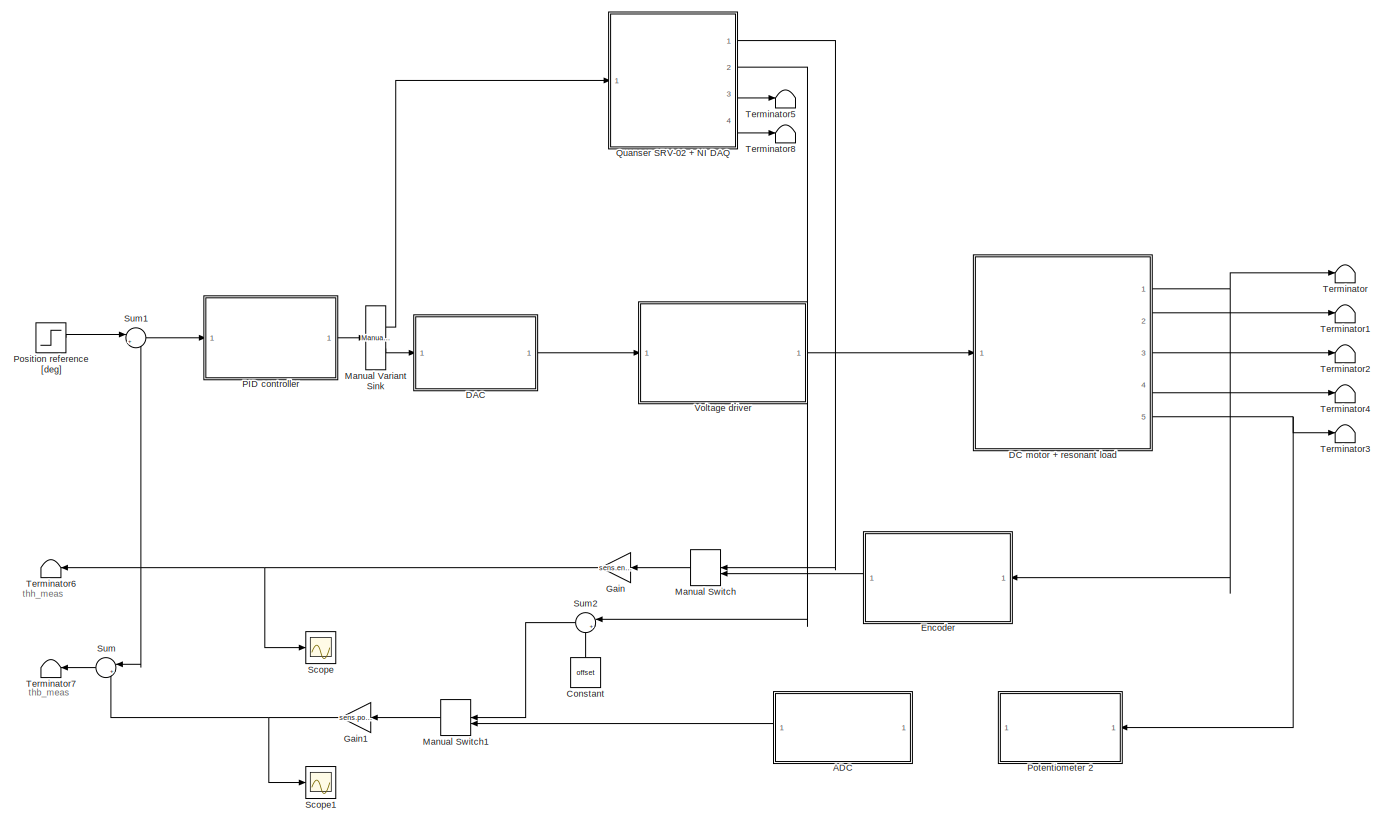
[diagram: root canvas - part 1/1, most of the canvas]
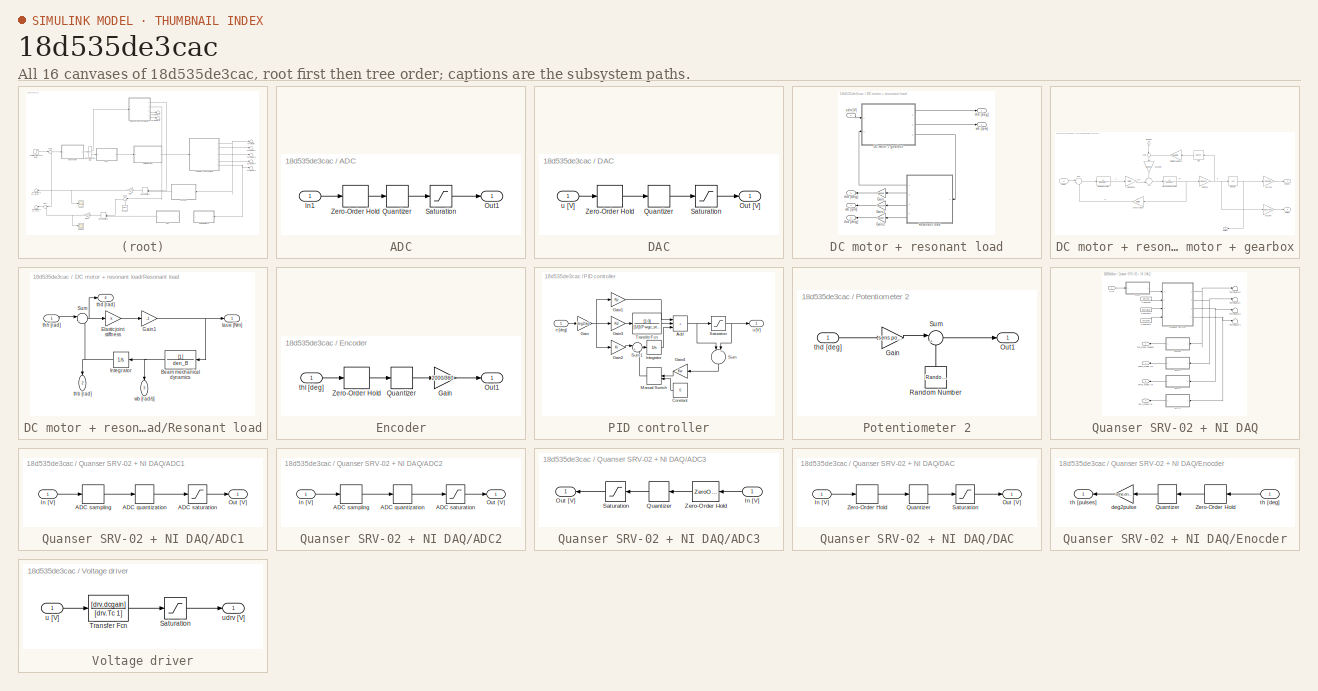
[diagram: thumbnail index - all 16 canvases of the model, root first then tree order]
MODEL slx_18d535de3cac
KIND model
CONFIG AbsTol = auto
CONFIG EnableMultiTasking = off
CONFIG FixedStep = auto
CONFIG MaxStep = auto
CONFIG MinStep = auto
CONFIG RelTol = 1e-3
CONFIG SampleTimeConstraint = Unconstrained
CONFIG SolverName = ode45
CONFIG StartTime = 0.0
CONFIG StopTime = 30.0
BLOCK [SubSystem] ADC
  Ports = [1, 1]
  RequestExecContextInheritance = off
BLOCK [Inport] ADC/In1
BLOCK [Outport] ADC/Out1
BLOCK [Quantizer] ADC/Quantizer
  QuantizationInterval = daq.adc.q
BLOCK [Saturate] ADC/Saturation
  LowerLimit = -daq.adc.fs
  UpperLimit = daq.adc.fs
BLOCK [ZeroOrderHold] ADC/Zero-Order Hold
  SampleTime = Ts
BLOCK [Constant] Constant
  NameLocation = left
  Value = offset
BLOCK [SubSystem] DAC
  Ports = [1, 1]
  RequestExecContextInheritance = off
BLOCK [Outport] DAC/Out [V]
BLOCK [Quantizer] DAC/Quantizer
  QuantizationInterval = daq.dac.q
BLOCK [Saturate] DAC/Saturation
  LowerLimit = -daq.dac.fs
  UpperLimit = daq.dac.fs
BLOCK [ZeroOrderHold] DAC/Zero-Order Hold
  SampleTime = Ts
BLOCK [Inport] DAC/u [V]
BLOCK [SubSystem] DC motor + resonant load
  Ports = [1, 5]
  RequestExecContextInheritance = off
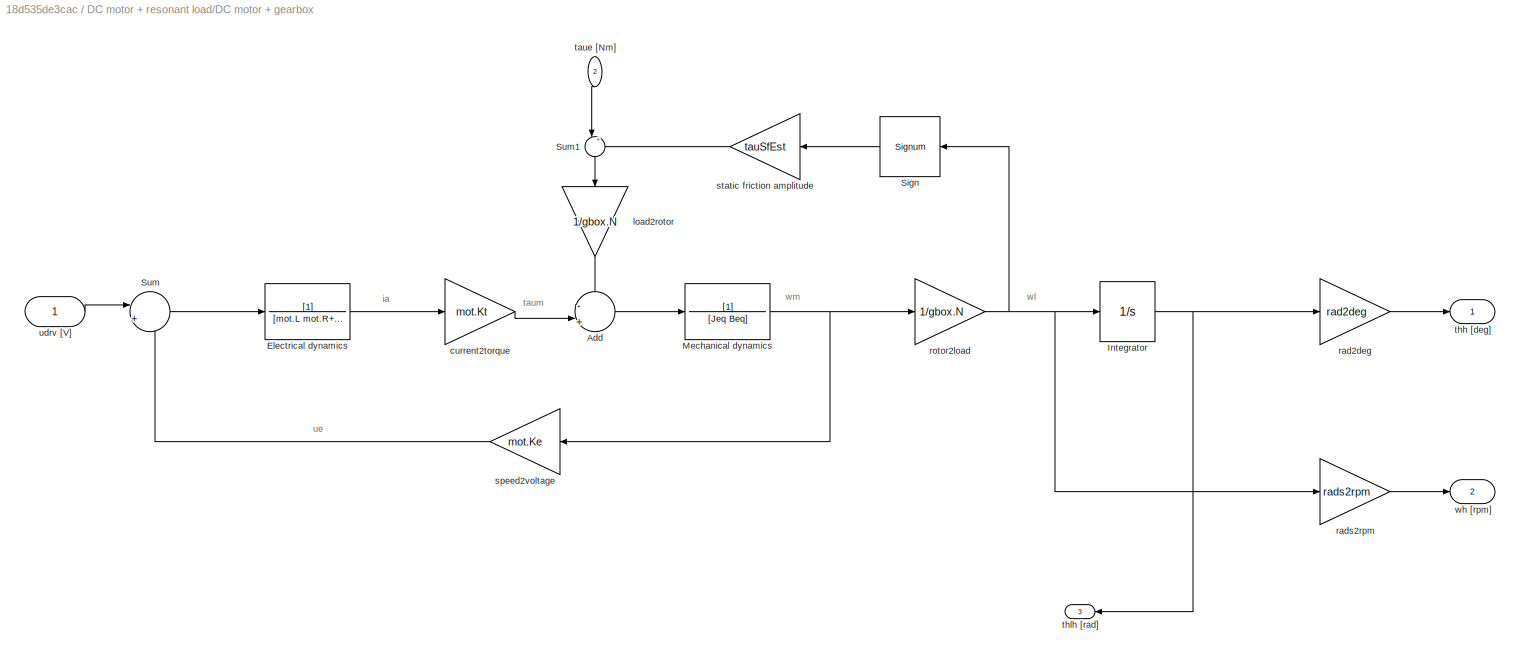
BLOCK [SubSystem] DC motor + resonant load/DC motor + gearbox
  Ports = [2, 3]
  RequestExecContextInheritance = off
BLOCK [Sum] DC motor + resonant load/DC motor + gearbox/Add
  Inputs = -|+||
  Ports = [2, 1]
BLOCK [TransferFcn] DC motor + resonant load/DC motor + gearbox/Electrical dynamics
  Denominator = [mot.L mot.R+sens.curr.Rs]
BLOCK [Integrator] DC motor + resonant load/DC motor + gearbox/Integrator
  Ports = [1, 1]
BLOCK [TransferFcn] DC motor + resonant load/DC motor + gearbox/Mechanical dynamics
  Denominator = [Jeq Beq]
BLOCK [Signum] DC motor + resonant load/DC motor + gearbox/Sign
  ZeroCross = off
BLOCK [Sum] DC motor + resonant load/DC motor + gearbox/Sum
  Inputs = |+-
  Ports = [2, 1]
BLOCK [Sum] DC motor + resonant load/DC motor + gearbox/Sum1
  Inputs = |++
  NameLocation = left
  Ports = [2, 1]
BLOCK [Gain] DC motor + resonant load/DC motor + gearbox/current2torque
  Gain = mot.Kt
BLOCK [Gain] DC motor + resonant load/DC motor + gearbox/load2rotor
  Gain = 1/gbox.N
  NameLocation = left
BLOCK [Gain] DC motor + resonant load/DC motor + gearbox/rad2deg
  Gain = rad2deg
BLOCK [Gain] DC motor + resonant load/DC motor + gearbox/rads2rpm
  Gain = rads2rpm
BLOCK [Gain] DC motor + resonant load/DC motor + gearbox/rotor2load
  Gain = 1/gbox.N
BLOCK [Gain] DC motor + resonant load/DC motor + gearbox/speed2voltage
  Gain = mot.Ke
BLOCK [Gain] DC motor + resonant load/DC motor + gearbox/static friction amplitude
  Gain = tauSfEst
  NameLocation = top
BLOCK [Inport] DC motor + resonant load/DC motor + gearbox/taue [Nm]
  NameLocation = left
  Port = 2
BLOCK [Outport] DC motor + resonant load/DC motor + gearbox/thh [deg] 
BLOCK [Outport] DC motor + resonant load/DC motor + gearbox/thlh [rad]
  NameLocation = top
  Port = 3
BLOCK [Inport] DC motor + resonant load/DC motor + gearbox/udrv [V]
BLOCK [Outport] DC motor + resonant load/DC motor + gearbox/wh [rpm]
  Port = 2
BLOCK [Gain] DC motor + resonant load/Gain
  Gain = rad2deg
BLOCK [Gain] DC motor + resonant load/Gain1
  Gain = rads2rpm
BLOCK [Gain] DC motor + resonant load/Gain2
  Gain = rad2deg
BLOCK [SubSystem] DC motor + resonant load/Resonant load
  Ports = [1, 4]
  RequestExecContextInheritance = off
BLOCK [TransferFcn] DC motor + resonant load/Resonant load/Beam mechanical dynamics
  Denominator = den_B
BLOCK [Gain] DC motor + resonant load/Resonant load/Elastic joint stiffness
  Gain = k
BLOCK [Gain] DC motor + resonant load/Resonant load/Gain1
  Gain = -1
BLOCK [Integrator] DC motor + resonant load/Resonant load/Integrator
  Ports = [1, 1]
BLOCK [Sum] DC motor + resonant load/Resonant load/Sum
  Inputs = |-+
  Ports = [2, 1]
BLOCK [Outport] DC motor + resonant load/Resonant load/taue [Nm]
BLOCK [Outport] DC motor + resonant load/Resonant load/thb [rad]
  NameLocation = left
  Port = 2
BLOCK [Outport] DC motor + resonant load/Resonant load/thd [rad]
  Port = 4
BLOCK [Inport] DC motor + resonant load/Resonant load/thh [rad]
BLOCK [Outport] DC motor + resonant load/Resonant load/wb [rad//s]
  NameLocation = left
  Port = 3
BLOCK [Outport] DC motor + resonant load/thb [deg]
  Port = 3
BLOCK [Outport] DC motor + resonant load/thd [deg]
  Port = 5
BLOCK [Outport] DC motor + resonant load/thh [deg] 
BLOCK [Inport] DC motor + resonant load/udrv [V]
BLOCK [Outport] DC motor + resonant load/wb [rpm]
  Port = 4
BLOCK [Outport] DC motor + resonant load/wh [rpm]
  Port = 2
BLOCK [SubSystem] Encoder
  Ports = [1, 1]
  RequestExecContextInheritance = off
BLOCK [Gain] Encoder/Gain
  Gain = 2000/360
BLOCK [Outport] Encoder/Out1
BLOCK [Quantizer] Encoder/Quantizer
  QuantizationInterval = 360/(500*4)
BLOCK [ZeroOrderHold] Encoder/Zero-Order Hold
  SampleTime = Ts
BLOCK [Inport] Encoder/thl [deg] 
BLOCK [Gain] Gain
  Gain = sens.enc.pulse2deg
BLOCK [Gain] Gain1
  Gain = sens.pot2.V2deg
BLOCK [ManualSwitch] Manual Switch
BLOCK [ManualSwitch] Manual Switch1
BLOCK [Reference] Manual Variant Sink  REF=simulink/Signal
Routing/Manual
Variant Sink
  Ports = [1, 2]
  SourceBlock = simulink/Signal\nRouting/Manual\nVariant Sink
  SourceProductBaseCode = SL
  SourceType = ManualVariantSink
BLOCK [SubSystem] PID controller
  Ports = [1, 1]
  RequestExecContextInheritance = off
BLOCK [Sum] PID controller/Add
  IconShape = rectangular
  Inputs = +++
  Ports = [3, 1]
BLOCK [Constant] PID controller/Constant
  Value = 0
BLOCK [Gain] PID controller/Gain
  Gain = deg2rad
BLOCK [Gain] PID controller/Gain1
  Gain = Kp
BLOCK [Gain] PID controller/Gain2
  Gain = Ki
BLOCK [Gain] PID controller/Gain3
  Gain = Kd
BLOCK [Gain] PID controller/Gain4
  Gain = Kw
BLOCK [Integrator] PID controller/Integrator
  Ports = [1, 1]
BLOCK [ManualSwitch] PID controller/Manual Switch
  NameLocation = top
BLOCK [Saturate] PID controller/Saturation
  LowerLimit = -12
  UpperLimit = 12
BLOCK [Sum] PID controller/Sum
  Inputs = ||+-||
  NameLocation = left
  Ports = [2, 1]
BLOCK [Sum] PID controller/Sum1
  Inputs = |+-
  Ports = [2, 1]
BLOCK [TransferFcn] PID controller/Transfer Fcn
  Denominator = [1/(10*wgc_star) 1]
  Numerator = [1 0]
BLOCK [Inport] PID controller/e [deg]
BLOCK [Outport] PID controller/u [V]
BLOCK [Step] Position reference [deg]
  After = 50
  SampleTime = 0
  Time = 0
BLOCK [SubSystem] Potentiometer 2
  Ports = [1, 1]
  RequestExecContextInheritance = off
BLOCK [Gain] Potentiometer 2/Gain
  Gain = sens.pot2.deg2V
BLOCK [Outport] Potentiometer 2/Out1
BLOCK [RandomNumber] Potentiometer 2/Random Number
  NameLocation = right
  SampleTime = Ts
  Variance = 3.5e-7
BLOCK [Sum] Potentiometer 2/Sum
  Inputs = |++
  Ports = [2, 1]
BLOCK [Inport] Potentiometer 2/thd [deg]
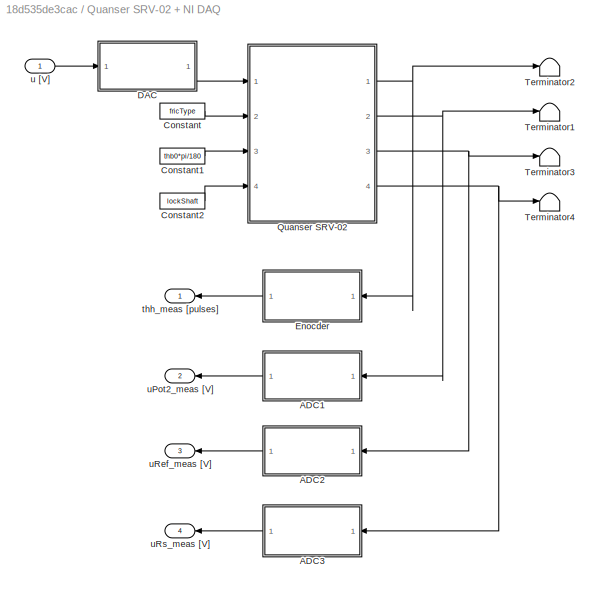
BLOCK [SubSystem] Quanser SRV-02 + NI DAQ
  Ports = [1, 4]
  RequestExecContextInheritance = off
BLOCK [SubSystem] Quanser SRV-02 + NI DAQ/ADC1
  Ports = [1, 1]
  RequestExecContextInheritance = off
BLOCK [Quantizer] Quanser SRV-02 + NI DAQ/ADC1/ADC quantization
  QuantizationInterval = daq.adc.q
BLOCK [ZeroOrderHold] Quanser SRV-02 + NI DAQ/ADC1/ADC sampling
  SampleTime = Ts
BLOCK [Saturate] Quanser SRV-02 + NI DAQ/ADC1/ADC saturation
  LowerLimit = -daq.adc.fs
  UpperLimit = daq.adc.fs
BLOCK [Inport] Quanser SRV-02 + NI DAQ/ADC1/In [V]
BLOCK [Outport] Quanser SRV-02 + NI DAQ/ADC1/Out [V]
BLOCK [SubSystem] Quanser SRV-02 + NI DAQ/ADC2
  Ports = [1, 1]
  RequestExecContextInheritance = off
BLOCK [Quantizer] Quanser SRV-02 + NI DAQ/ADC2/ADC quantization
  QuantizationInterval = daq.adc.q
BLOCK [ZeroOrderHold] Quanser SRV-02 + NI DAQ/ADC2/ADC sampling
  SampleTime = Ts
BLOCK [Saturate] Quanser SRV-02 + NI DAQ/ADC2/ADC saturation
  LowerLimit = -daq.adc.fs
  UpperLimit = daq.adc.fs
BLOCK [Inport] Quanser SRV-02 + NI DAQ/ADC2/In [V]
BLOCK [Outport] Quanser SRV-02 + NI DAQ/ADC2/Out [V]
BLOCK [SubSystem] Quanser SRV-02 + NI DAQ/ADC3
  Ports = [1, 1]
  RequestExecContextInheritance = off
BLOCK [Inport] Quanser SRV-02 + NI DAQ/ADC3/In [V]
BLOCK [Outport] Quanser SRV-02 + NI DAQ/ADC3/Out [V]
BLOCK [Quantizer] Quanser SRV-02 + NI DAQ/ADC3/Quantizer
  QuantizationInterval = daq.adc.q
BLOCK [Saturate] Quanser SRV-02 + NI DAQ/ADC3/Saturation
  LowerLimit = -daq.adc.fs
  UpperLimit = daq.adc.fs
BLOCK [ZeroOrderHold] Quanser SRV-02 + NI DAQ/ADC3/Zero-Order Hold
  SampleTime = Ts
BLOCK [Constant] Quanser SRV-02 + NI DAQ/Constant
  Value = fricType
BLOCK [Constant] Quanser SRV-02 + NI DAQ/Constant1
  SampleTime = Inf
  Value = thb0*pi/180
BLOCK [Constant] Quanser SRV-02 + NI DAQ/Constant2
  SampleTime = Inf
  Value = lockShaft
BLOCK [SubSystem] Quanser SRV-02 + NI DAQ/DAC
  Ports = [1, 1]
  RequestExecContextInheritance = off
BLOCK [Inport] Quanser SRV-02 + NI DAQ/DAC/In [V]
BLOCK [Outport] Quanser SRV-02 + NI DAQ/DAC/Out [V]
BLOCK [Quantizer] Quanser SRV-02 + NI DAQ/DAC/Quantizer
  QuantizationInterval = daq.dac.q
BLOCK [Saturate] Quanser SRV-02 + NI DAQ/DAC/Saturation
  LowerLimit = -daq.dac.fs
  UpperLimit = daq.dac.fs
BLOCK [ZeroOrderHold] Quanser SRV-02 + NI DAQ/DAC/Zero-Order Hold
  SampleTime = Ts
BLOCK [SubSystem] Quanser SRV-02 + NI DAQ/Enocder
  Ports = [1, 1]
  RequestExecContextInheritance = off
BLOCK [Quantizer] Quanser SRV-02 + NI DAQ/Enocder/Quantizer
  QuantizationInterval = sens.enc.pulse2deg
BLOCK [ZeroOrderHold] Quanser SRV-02 + NI DAQ/Enocder/Zero-Order Hold
  SampleTime = Ts
BLOCK [Gain] Quanser SRV-02 + NI DAQ/Enocder/deg2pulse
  Gain = sens.enc.deg2pulse
BLOCK [Inport] Quanser SRV-02 + NI DAQ/Enocder/th [deg]
BLOCK [Outport] Quanser SRV-02 + NI DAQ/Enocder/th [pulses]
BLOCK [ModelReference] Quanser SRV-02 + NI DAQ/Quanser SRV-02
  CopyOfModelProtected = on
  ModelNameDialog = SRV02RL_maci64.slxp
  ModelReferenceVersion = 1.76
  Ports = [4, 4]
BLOCK [Terminator] Quanser SRV-02 + NI DAQ/Terminator1
BLOCK [Terminator] Quanser SRV-02 + NI DAQ/Terminator2
BLOCK [Terminator] Quanser SRV-02 + NI DAQ/Terminator3
BLOCK [Terminator] Quanser SRV-02 + NI DAQ/Terminator4
BLOCK [Outport] Quanser SRV-02 + NI DAQ/thh_meas [pulses]
BLOCK [Inport] Quanser SRV-02 + NI DAQ/u [V]
BLOCK [Outport] Quanser SRV-02 + NI DAQ/uPot2_meas [V]
  Port = 2
BLOCK [Outport] Quanser SRV-02 + NI DAQ/uRef_meas [V]
  Port = 3
BLOCK [Outport] Quanser SRV-02 + NI DAQ/uRs_meas [V]
  Port = 4
BLOCK [Scope] Scope
  Floating = off
  NumInputPorts = 1
  Ports = [1]
  ScopeSpecificationString = Simulink.scopes.TimeScopeBlockCfg('CurrentConfiguration', extmgr.ConfigurationSet(extmgr.Configuration('Core','General UI',true),extmgr.Configuration('Core','Source UI',true),extmgr.Configuration('Sources','WiredSimulink',true),extmgr.Configuration('Visuals','Time Domain',true,'SerializedDisplays',{struct('MinYLimReal','-7.785','MaxYLimReal','70.065','YLabelReal','','MinYLimMag','0.00000','MaxYLim...<+1388ch>
BLOCK [Scope] Scope1
  Floating = off
  NumInputPorts = 1
  Ports = [1]
  ScopeSpecificationString = Simulink.scopes.TimeScopeBlockCfg('CurrentConfiguration', extmgr.ConfigurationSet(extmgr.Configuration('Core','General UI',true),extmgr.Configuration('Core','Source UI',true),extmgr.Configuration('Sources','WiredSimulink',true,'DataLoggingVariableName','ScopeData1'),extmgr.Configuration('Visuals','Time Domain',true,'SerializedDisplays',{struct('MinYLimReal','-11.47604','MaxYLimReal','5.02202','YLa...<+1440ch>
BLOCK [Sum] Sum
  Inputs = |++
  Ports = [2, 1]
BLOCK [Sum] Sum1
  Inputs = |+-
  Ports = [2, 1]
BLOCK [Sum] Sum2
  Inputs = |+-
  Ports = [2, 1]
BLOCK [Terminator] Terminator
BLOCK [Terminator] Terminator1
BLOCK [Terminator] Terminator2
BLOCK [Terminator] Terminator3
BLOCK [Terminator] Terminator4
BLOCK [Terminator] Terminator5
BLOCK [Terminator] Terminator6
BLOCK [Terminator] Terminator7
BLOCK [Terminator] Terminator8
BLOCK [SubSystem] Voltage driver
  Ports = [1, 1]
  RequestExecContextInheritance = off
BLOCK [Saturate] Voltage driver/Saturation
  LowerLimit = -12
  UpperLimit = 12
BLOCK [TransferFcn] Voltage driver/Transfer Fcn
  Denominator = [drv.Tc 1]
  Numerator = [drv.dcgain]
BLOCK [Inport] Voltage driver/u [V]
BLOCK [Outport] Voltage driver/udrv [V]
ANNOTATION (root): thb_meas
ANNOTATION (root): thh_meas
ANNOTATION DC motor + resonant load/DC motor + gearbox: ia
ANNOTATION DC motor + resonant load/DC motor + gearbox: taum
ANNOTATION DC motor + resonant load/DC motor + gearbox: ue
ANNOTATION DC motor + resonant load/DC motor + gearbox: wl
ANNOTATION DC motor + resonant load/DC motor + gearbox: wm
LINE ADC/In1:1 -> ADC/Zero-Order Hold:1
LINE ADC/Quantizer:1 -> ADC/Saturation:1
LINE ADC/Saturation:1 -> ADC/Out1:1
LINE ADC/Zero-Order Hold:1 -> ADC/Quantizer:1
LINE ADC:1 -> Manual Switch1:2
LINE Constant:1 -> Sum2:2
LINE DAC/Quantizer:1 -> DAC/Saturation:1
LINE DAC/Saturation:1 -> DAC/Out [V]:1
LINE DAC/Zero-Order Hold:1 -> DAC/Quantizer:1
LINE DAC/u [V]:1 -> DAC/Zero-Order Hold:1
LINE DAC:1 -> Voltage driver:1
LINE DC motor + resonant load/DC motor + gearbox/Add:1 -> DC motor + resonant load/DC motor + gearbox/Mechanical dynamics:1
LINE DC motor + resonant load/DC motor + gearbox/Electrical dynamics:1 -> DC motor + resonant load/DC motor + gearbox/current2torque:1
NET DC motor + resonant load/DC motor + gearbox/Integrator:1 -> DC motor + resonant load/DC motor + gearbox/rad2deg:1, DC motor + resonant load/DC motor + gearbox/thlh [rad]:1
NET DC motor + resonant load/DC motor + gearbox/Mechanical dynamics:1 -> DC motor + resonant load/DC motor + gearbox/rotor2load:1, DC motor + resonant load/DC motor + gearbox/speed2voltage:1
LINE DC motor + resonant load/DC motor + gearbox/Sign:1 -> DC motor + resonant load/DC motor + gearbox/static friction amplitude:1
LINE DC motor + resonant load/DC motor + gearbox/Sum1:1 -> DC motor + resonant load/DC motor + gearbox/load2rotor:1
LINE DC motor + resonant load/DC motor + gearbox/Sum:1 -> DC motor + resonant load/DC motor + gearbox/Electrical dynamics:1
LINE DC motor + resonant load/DC motor + gearbox/current2torque:1 -> DC motor + resonant load/DC motor + gearbox/Add:2
LINE DC motor + resonant load/DC motor + gearbox/load2rotor:1 -> DC motor + resonant load/DC motor + gearbox/Add:1
LINE DC motor + resonant load/DC motor + gearbox/rad2deg:1 -> DC motor + resonant load/DC motor + gearbox/thh [deg] :1
LINE DC motor + resonant load/DC motor + gearbox/rads2rpm:1 -> DC motor + resonant load/DC motor + gearbox/wh [rpm]:1
NET DC motor + resonant load/DC motor + gearbox/rotor2load:1 -> DC motor + resonant load/DC motor + gearbox/Integrator:1, DC motor + resonant load/DC motor + gearbox/Sign:1, DC motor + resonant load/DC motor + gearbox/rads2rpm:1
LINE DC motor + resonant load/DC motor + gearbox/speed2voltage:1 -> DC motor + resonant load/DC motor + gearbox/Sum:2
LINE DC motor + resonant load/DC motor + gearbox/static friction amplitude:1 -> DC motor + resonant load/DC motor + gearbox/Sum1:2
LINE DC motor + resonant load/DC motor + gearbox/taue [Nm]:1 -> DC motor + resonant load/DC motor + gearbox/Sum1:1
LINE DC motor + resonant load/DC motor + gearbox/udrv [V]:1 -> DC motor + resonant load/DC motor + gearbox/Sum:1
LINE DC motor + resonant load/DC motor + gearbox:1 -> DC motor + resonant load/thh [deg] :1
LINE DC motor + resonant load/DC motor + gearbox:2 -> DC motor + resonant load/wh [rpm]:1
LINE DC motor + resonant load/DC motor + gearbox:3 -> DC motor + resonant load/Resonant load:1
LINE DC motor + resonant load/Gain1:1 -> DC motor + resonant load/wb [rpm]:1
LINE DC motor + resonant load/Gain2:1 -> DC motor + resonant load/thd [deg]:1
LINE DC motor + resonant load/Gain:1 -> DC motor + resonant load/thb [deg]:1
NET DC motor + resonant load/Resonant load/Beam mechanical dynamics:1 -> DC motor + resonant load/Resonant load/Integrator:1, DC motor + resonant load/Resonant load/wb [rad//s]:1
LINE DC motor + resonant load/Resonant load/Elastic joint stiffness:1 -> DC motor + resonant load/Resonant load/Gain1:1
NET DC motor + resonant load/Resonant load/Gain1:1 -> DC motor + resonant load/Resonant load/Beam mechanical dynamics:1, DC motor + resonant load/Resonant load/taue [Nm]:1
NET DC motor + resonant load/Resonant load/Integrator:1 -> DC motor + resonant load/Resonant load/Sum:2, DC motor + resonant load/Resonant load/thb [rad]:1
NET DC motor + resonant load/Resonant load/Sum:1 -> DC motor + resonant load/Resonant load/Elastic joint stiffness:1, DC motor + resonant load/Resonant load/thd [rad]:1
LINE DC motor + resonant load/Resonant load/thh [rad]:1 -> DC motor + resonant load/Resonant load/Sum:1
LINE DC motor + resonant load/Resonant load:1 -> DC motor + resonant load/DC motor + gearbox:2
LINE DC motor + resonant load/Resonant load:2 -> DC motor + resonant load/Gain:1
LINE DC motor + resonant load/Resonant load:3 -> DC motor + resonant load/Gain1:1
LINE DC motor + resonant load/Resonant load:4 -> DC motor + resonant load/Gain2:1
LINE DC motor + resonant load/udrv [V]:1 -> DC motor + resonant load/DC motor + gearbox:1
NET DC motor + resonant load:1 -> Encoder:1, Terminator:1
LINE DC motor + resonant load:2 -> Terminator1:1
LINE DC motor + resonant load:3 -> Terminator2:1
LINE DC motor + resonant load:4 -> Terminator4:1
NET DC motor + resonant load:5 -> Potentiometer 2:1, Terminator3:1
LINE Encoder/Gain:1 -> Encoder/Out1:1
LINE Encoder/Quantizer:1 -> Encoder/Gain:1
LINE Encoder/Zero-Order Hold:1 -> Encoder/Quantizer:1
LINE Encoder/thl [deg] :1 -> Encoder/Zero-Order Hold:1
LINE Encoder:1 -> Manual Switch:2
NET Gain1:1 -> Scope1:1, Sum:2
NET Gain:1 -> Scope:1, Sum1:2, Sum:1, Terminator6:1
LINE Manual Switch1:1 -> Gain1:1
LINE Manual Switch:1 -> Gain:1
LINE Manual Variant Sink:1 -> Quanser SRV-02 + NI DAQ:1
LINE Manual Variant Sink:2 -> DAC:1
NET PID controller/Add:1 -> PID controller/Saturation:1, PID controller/Sum:1
LINE PID controller/Constant:1 -> PID controller/Manual Switch:2
LINE PID controller/Gain1:1 -> PID controller/Add:1
LINE PID controller/Gain2:1 -> PID controller/Sum1:1
LINE PID controller/Gain3:1 -> PID controller/Transfer Fcn:1
LINE PID controller/Gain4:1 -> PID controller/Manual Switch:1
NET PID controller/Gain:1 -> PID controller/Gain1:1, PID controller/Gain2:1, PID controller/Gain3:1
LINE PID controller/Integrator:1 -> PID controller/Add:3
LINE PID controller/Manual Switch:1 -> PID controller/Sum1:2
NET PID controller/Saturation:1 -> PID controller/Sum:2, PID controller/u [V]:1
LINE PID controller/Sum1:1 -> PID controller/Integrator:1
LINE PID controller/Sum:1 -> PID controller/Gain4:1
LINE PID controller/Transfer Fcn:1 -> PID controller/Add:2
LINE PID controller/e [deg]:1 -> PID controller/Gain:1
LINE PID controller:1 -> Manual Variant Sink:1
LINE Position reference [deg]:1 -> Sum1:1
LINE Potentiometer 2/Gain:1 -> Potentiometer 2/Sum:1
LINE Potentiometer 2/Random Number:1 -> Potentiometer 2/Sum:2
LINE Potentiometer 2/Sum:1 -> Potentiometer 2/Out1:1
LINE Potentiometer 2/thd [deg]:1 -> Potentiometer 2/Gain:1
LINE Quanser SRV-02 + NI DAQ/ADC1/ADC quantization:1 -> Quanser SRV-02 + NI DAQ/ADC1/ADC saturation:1
LINE Quanser SRV-02 + NI DAQ/ADC1/ADC sampling:1 -> Quanser SRV-02 + NI DAQ/ADC1/ADC quantization:1
LINE Quanser SRV-02 + NI DAQ/ADC1/ADC saturation:1 -> Quanser SRV-02 + NI DAQ/ADC1/Out [V]:1
LINE Quanser SRV-02 + NI DAQ/ADC1/In [V]:1 -> Quanser SRV-02 + NI DAQ/ADC1/ADC sampling:1
LINE Quanser SRV-02 + NI DAQ/ADC1:1 -> Quanser SRV-02 + NI DAQ/uPot2_meas [V]:1
LINE Quanser SRV-02 + NI DAQ/ADC2/ADC quantization:1 -> Quanser SRV-02 + NI DAQ/ADC2/ADC saturation:1
LINE Quanser SRV-02 + NI DAQ/ADC2/ADC sampling:1 -> Quanser SRV-02 + NI DAQ/ADC2/ADC quantization:1
LINE Quanser SRV-02 + NI DAQ/ADC2/ADC saturation:1 -> Quanser SRV-02 + NI DAQ/ADC2/Out [V]:1
LINE Quanser SRV-02 + NI DAQ/ADC2/In [V]:1 -> Quanser SRV-02 + NI DAQ/ADC2/ADC sampling:1
LINE Quanser SRV-02 + NI DAQ/ADC2:1 -> Quanser SRV-02 + NI DAQ/uRef_meas [V]:1
LINE Quanser SRV-02 + NI DAQ/ADC3/In [V]:1 -> Quanser SRV-02 + NI DAQ/ADC3/Zero-Order Hold:1
LINE Quanser SRV-02 + NI DAQ/ADC3/Quantizer:1 -> Quanser SRV-02 + NI DAQ/ADC3/Saturation:1
LINE Quanser SRV-02 + NI DAQ/ADC3/Saturation:1 -> Quanser SRV-02 + NI DAQ/ADC3/Out [V]:1
LINE Quanser SRV-02 + NI DAQ/ADC3/Zero-Order Hold:1 -> Quanser SRV-02 + NI DAQ/ADC3/Quantizer:1
LINE Quanser SRV-02 + NI DAQ/ADC3:1 -> Quanser SRV-02 + NI DAQ/uRs_meas [V]:1
LINE Quanser SRV-02 + NI DAQ/Constant1:1 -> Quanser SRV-02 + NI DAQ/Quanser SRV-02:3
LINE Quanser SRV-02 + NI DAQ/Constant2:1 -> Quanser SRV-02 + NI DAQ/Quanser SRV-02:4
LINE Quanser SRV-02 + NI DAQ/Constant:1 -> Quanser SRV-02 + NI DAQ/Quanser SRV-02:2
LINE Quanser SRV-02 + NI DAQ/DAC/In [V]:1 -> Quanser SRV-02 + NI DAQ/DAC/Zero-Order Hold:1
LINE Quanser SRV-02 + NI DAQ/DAC/Quantizer:1 -> Quanser SRV-02 + NI DAQ/DAC/Saturation:1
LINE Quanser SRV-02 + NI DAQ/DAC/Saturation:1 -> Quanser SRV-02 + NI DAQ/DAC/Out [V]:1
LINE Quanser SRV-02 + NI DAQ/DAC/Zero-Order Hold:1 -> Quanser SRV-02 + NI DAQ/DAC/Quantizer:1
LINE Quanser SRV-02 + NI DAQ/DAC:1 -> Quanser SRV-02 + NI DAQ/Quanser SRV-02:1
LINE Quanser SRV-02 + NI DAQ/Enocder/Quantizer:1 -> Quanser SRV-02 + NI DAQ/Enocder/deg2pulse:1
LINE Quanser SRV-02 + NI DAQ/Enocder/Zero-Order Hold:1 -> Quanser SRV-02 + NI DAQ/Enocder/Quantizer:1
LINE Quanser SRV-02 + NI DAQ/Enocder/deg2pulse:1 -> Quanser SRV-02 + NI DAQ/Enocder/th [pulses]:1
LINE Quanser SRV-02 + NI DAQ/Enocder/th [deg]:1 -> Quanser SRV-02 + NI DAQ/Enocder/Zero-Order Hold:1
LINE Quanser SRV-02 + NI DAQ/Enocder:1 -> Quanser SRV-02 + NI DAQ/thh_meas [pulses]:1
NET Quanser SRV-02 + NI DAQ/Quanser SRV-02:1 -> Quanser SRV-02 + NI DAQ/Enocder:1, Quanser SRV-02 + NI DAQ/Terminator2:1
NET Quanser SRV-02 + NI DAQ/Quanser SRV-02:2 -> Quanser SRV-02 + NI DAQ/ADC1:1, Quanser SRV-02 + NI DAQ/Terminator1:1
NET Quanser SRV-02 + NI DAQ/Quanser SRV-02:3 -> Quanser SRV-02 + NI DAQ/ADC2:1, Quanser SRV-02 + NI DAQ/Terminator3:1
NET Quanser SRV-02 + NI DAQ/Quanser SRV-02:4 -> Quanser SRV-02 + NI DAQ/ADC3:1, Quanser SRV-02 + NI DAQ/Terminator4:1
LINE Quanser SRV-02 + NI DAQ/u [V]:1 -> Quanser SRV-02 + NI DAQ/DAC:1
LINE Quanser SRV-02 + NI DAQ:1 -> Manual Switch:1
LINE Quanser SRV-02 + NI DAQ:2 -> Sum2:1
LINE Quanser SRV-02 + NI DAQ:3 -> Terminator5:1
LINE Quanser SRV-02 + NI DAQ:4 -> Terminator8:1
LINE Sum1:1 -> PID controller:1
LINE Sum2:1 -> Manual Switch1:1
LINE Sum:1 -> Terminator7:1
LINE Voltage driver/Saturation:1 -> Voltage driver/udrv [V]:1
LINE Voltage driver/Transfer Fcn:1 -> Voltage driver/Saturation:1
LINE Voltage driver/u [V]:1 -> Voltage driver/Transfer Fcn:1
LINE Voltage driver:1 -> DC motor + resonant load:1
note: NET lines group one-source signal fan-out (src -> all destinations, sorted); 1:1 wires keep LINE
